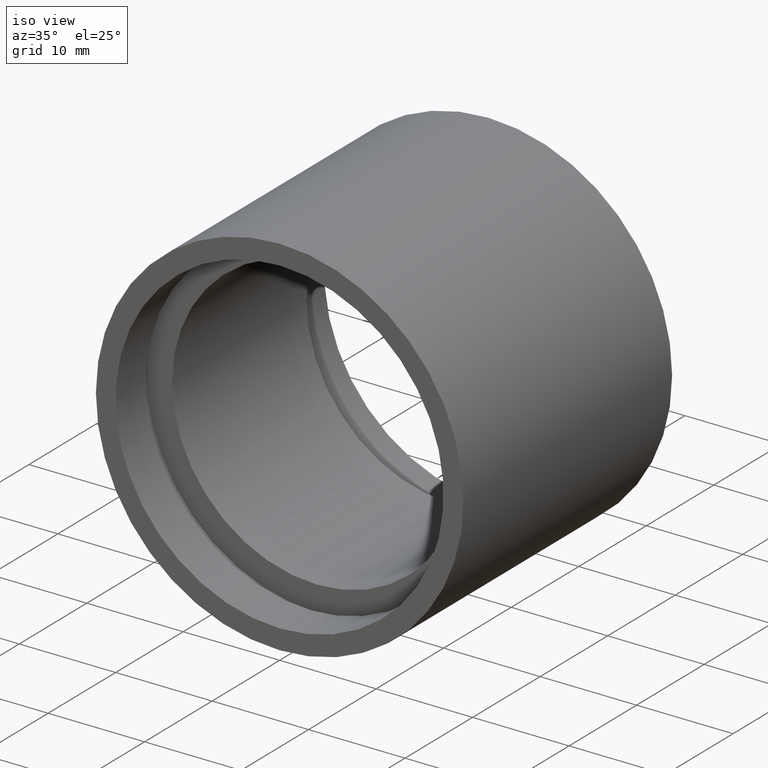
[diagram: clean part render]
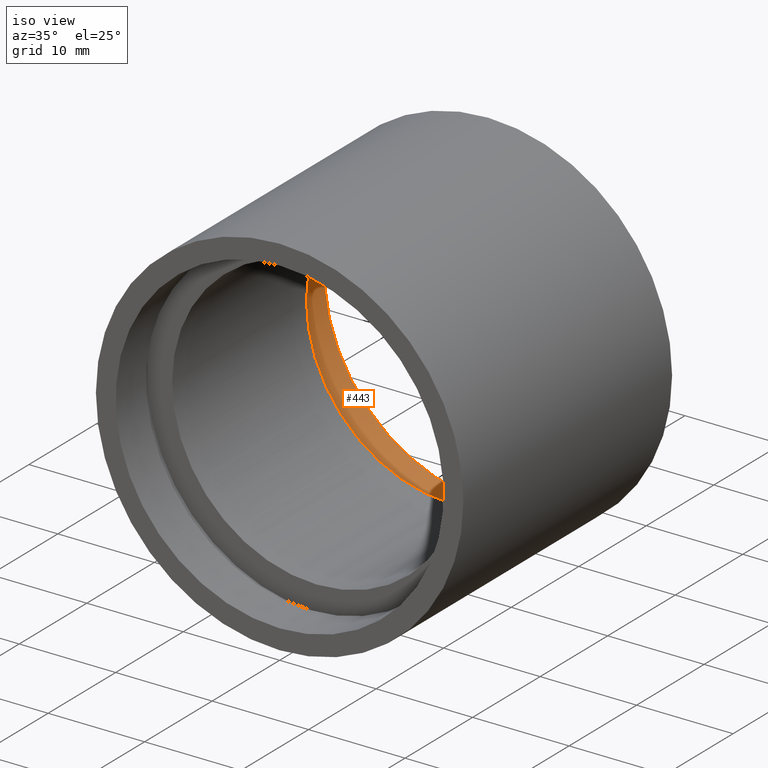
[diagram: same view with one face highlighted and labeled with its STEP entity id]
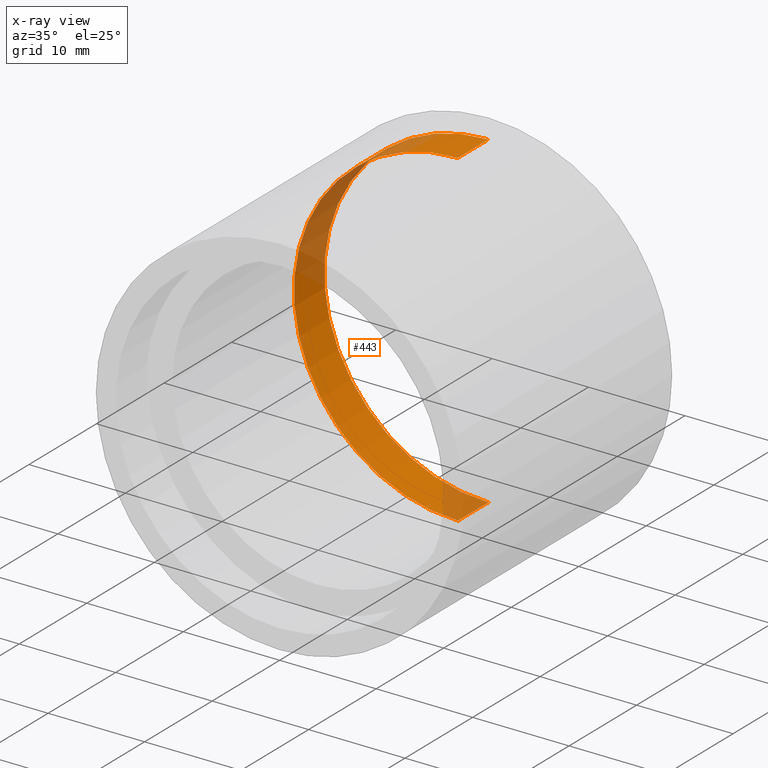
[diagram: x-ray of the same camera — body ghosted, the highlighted face saturated]
A machine part, iso view. The second image highlights one B-rep face of the part: STEP entity #443.
The next image is the same camera in x-ray: the body ghosted, the highlighted face saturated — about 28% of this face is hidden behind the body in this view.
In plain terms, the highlighted cylindrical surface (partial cylindrical patch) has radius 17 mm, axis along (-0, 1, -0).
Its self-contained STEP definition (entity closure, byte-faithful):
#4 = VECTOR ( 'NONE', #438, 1000.000000000000000 ) ;
#14 = CARTESIAN_POINT ( 'NONE',  ( 0.0000000000000000000, 161.3761669434274500, 0.0000000000000000000 ) ) ;
#37 = CARTESIAN_POINT ( 'NONE',  ( 0.0000000000000000000, 30.89999999999998400, 17.00000000000002100 ) ) ;
#47 = EDGE_LOOP ( 'NONE', ( #95, #119, #55, #582 ) ) ;
#50 = AXIS2_PLACEMENT_3D ( 'NONE', #14, #64, #321 ) ;
#55 = ORIENTED_EDGE ( 'NONE', *, *, #559, .T. ) ;
#64 = DIRECTION ( 'NONE',  ( -0.0000000000000000000, 1.000000000000000000, -0.0000000000000000000 ) ) ;
#79 = CARTESIAN_POINT ( 'NONE',  ( 0.0000000000000000000, 26.39999999999997700, 17.00000000000002100 ) ) ;
#82 = CYLINDRICAL_SURFACE ( 'NONE', #50, 17.00000000000002100 ) ;
#95 = ORIENTED_EDGE ( 'NONE', *, *, #457, .F. ) ;
#112 = DIRECTION ( 'NONE',  ( -0.0000000000000000000, 1.000000000000000000, -0.0000000000000000000 ) ) ;
#119 = ORIENTED_EDGE ( 'NONE', *, *, #156, .T. ) ;
#129 = CARTESIAN_POINT ( 'NONE',  ( 0.0000000000000000000, 161.3761669434274500, 17.00000000000002100 ) ) ;
#156 = EDGE_CURVE ( 'NONE', #335, #223, #313, .T. ) ;
#196 = VECTOR ( 'NONE', #565, 1000.000000000000000 ) ;
#217 = CARTESIAN_POINT ( 'NONE',  ( 2.081899558550503000E-015, 30.89999999999998400, -17.00000000000002100 ) ) ;
#223 = VERTEX_POINT ( 'NONE', #217 ) ;
#229 = AXIS2_PLACEMENT_3D ( 'NONE', #557, #112, #268 ) ;
#231 = LINE ( 'NONE', #129, #4 ) ;
#253 = CIRCLE ( 'NONE', #229, 17.00000000000002100 ) ;
#268 = DIRECTION ( 'NONE',  ( 0.0000000000000000000, 0.0000000000000000000, 1.000000000000000000 ) ) ;
#313 = LINE ( 'NONE', #515, #196 ) ;
#321 = DIRECTION ( 'NONE',  ( 0.0000000000000000000, 0.0000000000000000000, 1.000000000000000000 ) ) ;
#335 = VERTEX_POINT ( 'NONE', #573 ) ;
#340 = EDGE_CURVE ( 'NONE', #366, #396, #231, .T. ) ;
#341 = CARTESIAN_POINT ( 'NONE',  ( 0.0000000000000000000, 30.89999999999998400, 0.0000000000000000000 ) ) ;
#366 = VERTEX_POINT ( 'NONE', #79 ) ;
#378 = CIRCLE ( 'NONE', #488, 17.00000000000002100 ) ;
#393 = DIRECTION ( 'NONE',  ( -0.0000000000000000000, 1.000000000000000000, -0.0000000000000000000 ) ) ;
#396 = VERTEX_POINT ( 'NONE', #37 ) ;
#438 = DIRECTION ( 'NONE',  ( -0.0000000000000000000, 1.000000000000000000, -0.0000000000000000000 ) ) ;
#443 = ADVANCED_FACE ( 'NONE', ( #545 ), #82, .F. ) ;
#457 = EDGE_CURVE ( 'NONE', #335, #366, #253, .T. ) ;
#488 = AXIS2_PLACEMENT_3D ( 'NONE', #341, #393, #571 ) ;
#515 = CARTESIAN_POINT ( 'NONE',  ( 2.081899558550503000E-015, 161.3761669434274500, -17.00000000000002100 ) ) ;
#545 = FACE_OUTER_BOUND ( 'NONE', #47, .T. ) ;
#557 = CARTESIAN_POINT ( 'NONE',  ( 0.0000000000000000000, 26.39999999999997700, 0.0000000000000000000 ) ) ;
#559 = EDGE_CURVE ( 'NONE', #223, #396, #378, .T. ) ;
#565 = DIRECTION ( 'NONE',  ( -0.0000000000000000000, 1.000000000000000000, -0.0000000000000000000 ) ) ;
#571 = DIRECTION ( 'NONE',  ( 0.0000000000000000000, 0.0000000000000000000, 1.000000000000000000 ) ) ;
#573 = CARTESIAN_POINT ( 'NONE',  ( 2.081899558550503000E-015, 26.39999999999997700, -17.00000000000002100 ) ) ;
#582 = ORIENTED_EDGE ( 'NONE', *, *, #340, .F. ) ;